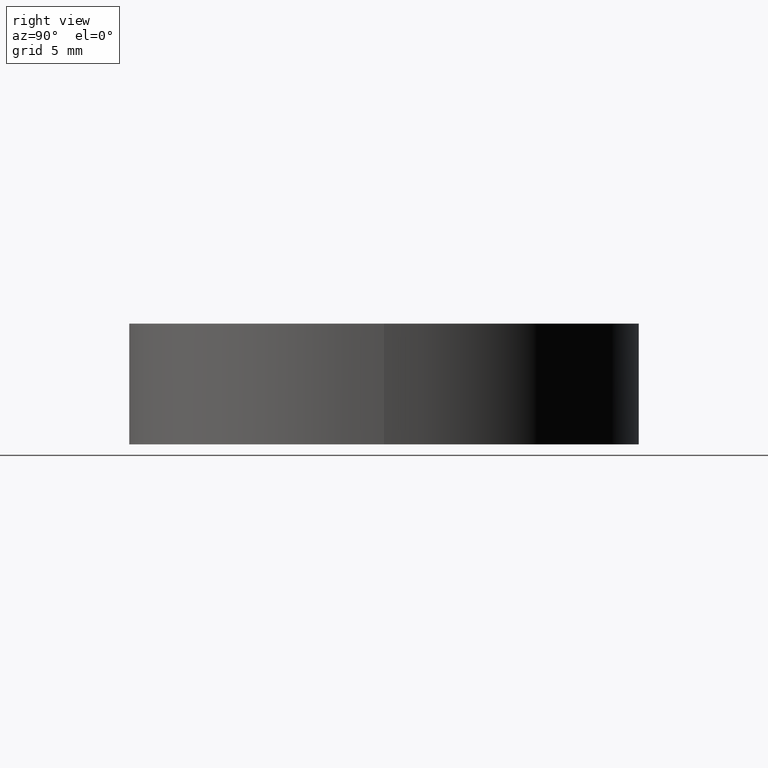
[diagram: clean part render]
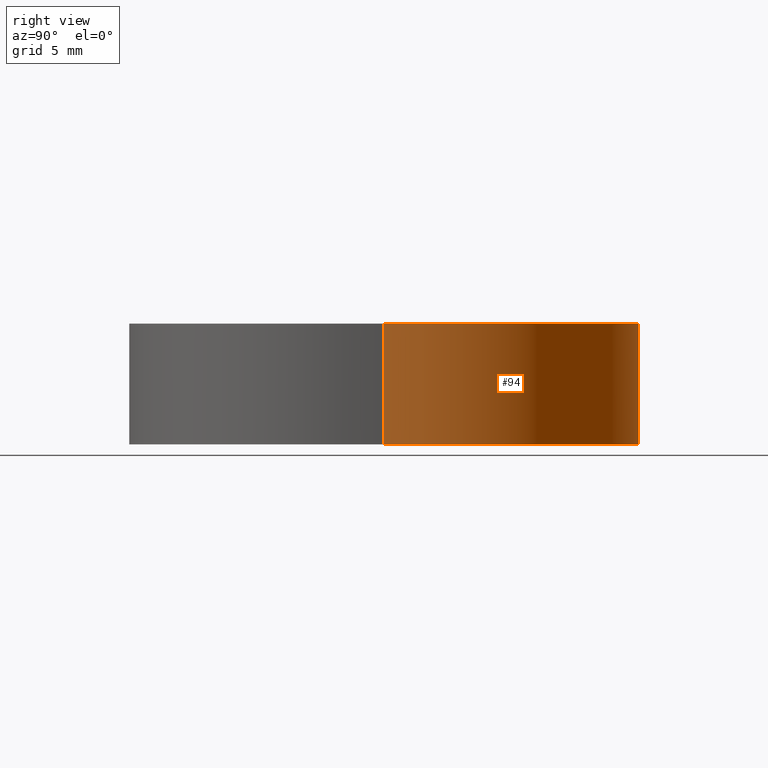
[diagram: same view with one face highlighted and labeled with its STEP entity id]
A machine part, right view. The second image highlights one B-rep face of the part: STEP entity #94.
In plain terms, the highlighted cylindrical surface (partial cylindrical patch) has radius 12.7 mm, axis along (-0, -0, -1).
Its self-contained STEP definition (entity closure, byte-faithful):
#2 = DIRECTION ( 'NONE',  ( -0.000000000000000000, -0.000000000000000000, -1.000000000000000000 ) ) ;
#12 = CARTESIAN_POINT ( 'NONE',  ( 12.70000000001259721, 1.555301434918681247E-15, 6.000000000000005329 ) ) ;
#20 = FACE_OUTER_BOUND ( 'NONE', #157, .T. ) ;
#22 = LINE ( 'NONE', #58, #97 ) ;
#26 = ORIENTED_EDGE ( 'NONE', *, *, #186, .T. ) ;
#41 = VERTEX_POINT ( 'NONE', #180 ) ;
#42 = VECTOR ( 'NONE', #115, 1000.000000000000000 ) ;
#49 = DIRECTION ( 'NONE',  ( 1.000000000000000000, 0.000000000000000000, 0.000000000000000000 ) ) ;
#52 = AXIS2_PLACEMENT_3D ( 'NONE', #138, #2, #64 ) ;
#54 = ORIENTED_EDGE ( 'NONE', *, *, #73, .F. ) ;
#58 = CARTESIAN_POINT ( 'NONE',  ( 12.69999999999999929, 1.555301434917138433E-15, 6.000000000000000000 ) ) ;
#64 = DIRECTION ( 'NONE',  ( 1.000000000000000000, 0.000000000000000000, 0.000000000000000000 ) ) ;
#67 = ORIENTED_EDGE ( 'NONE', *, *, #112, .T. ) ;
#73 = EDGE_CURVE ( 'NONE', #41, #145, #195, .T. ) ;
#85 = CARTESIAN_POINT ( 'NONE',  ( 0.000000000000000000, 0.000000000000000000, 6.000000000000000000 ) ) ;
#93 = DIRECTION ( 'NONE',  ( 0.000000000000000000, 0.000000000000000000, 1.000000000000000000 ) ) ;
#94 = ADVANCED_FACE ( 'NONE', ( #20 ), #197, .T. ) ;
#97 = VECTOR ( 'NONE', #182, 1000.000000000000000 ) ;
#103 = DIRECTION ( 'NONE',  ( -0.000000000000000000, -0.000000000000000000, -1.000000000000000000 ) ) ;
#105 = CARTESIAN_POINT ( 'NONE',  ( -12.69999999999999929, 0.000000000000000000, 6.000000000000000000 ) ) ;
#108 = CIRCLE ( 'NONE', #52, 12.70000000001234852 ) ;
#112 = EDGE_CURVE ( 'NONE', #135, #141, #22, .T. ) ;
#115 = DIRECTION ( 'NONE',  ( -0.000000000000000000, -0.000000000000000000, -1.000000000000000000 ) ) ;
#120 = CARTESIAN_POINT ( 'NONE',  ( 12.69999999999999929, 1.555301434917138433E-15, 0.000000000000000000 ) ) ;
#135 = VERTEX_POINT ( 'NONE', #12 ) ;
#138 = CARTESIAN_POINT ( 'NONE',  ( 2.463307335887066074E-13, 0.000000000000000000, 6.000000000000005329 ) ) ;
#141 = VERTEX_POINT ( 'NONE', #120 ) ;
#145 = VERTEX_POINT ( 'NONE', #183 ) ;
#157 = EDGE_LOOP ( 'NONE', ( #26, #67, #193, #54 ) ) ;
#160 = DIRECTION ( 'NONE',  ( -1.000000000000000000, 0.000000000000000000, 0.000000000000000000 ) ) ;
#173 = CARTESIAN_POINT ( 'NONE',  ( 0.000000000000000000, 0.000000000000000000, 0.000000000000000000 ) ) ;
#174 = EDGE_CURVE ( 'NONE', #141, #145, #177, .T. ) ;
#177 = CIRCLE ( 'NONE', #200, 12.69999999999999929 ) ;
#180 = CARTESIAN_POINT ( 'NONE',  ( -12.70000000001210338, 0.000000000000000000, 6.000000000000005329 ) ) ;
#182 = DIRECTION ( 'NONE',  ( -0.000000000000000000, -0.000000000000000000, -1.000000000000000000 ) ) ;
#183 = CARTESIAN_POINT ( 'NONE',  ( -12.69999999999999929, 0.000000000000000000, 0.000000000000000000 ) ) ;
#186 = EDGE_CURVE ( 'NONE', #41, #135, #108, .T. ) ;
#191 = AXIS2_PLACEMENT_3D ( 'NONE', #85, #103, #160 ) ;
#193 = ORIENTED_EDGE ( 'NONE', *, *, #174, .T. ) ;
#195 = LINE ( 'NONE', #105, #42 ) ;
#197 = CYLINDRICAL_SURFACE ( 'NONE', #191, 12.69999999999999929 ) ;
#200 = AXIS2_PLACEMENT_3D ( 'NONE', #173, #93, #49 ) ;